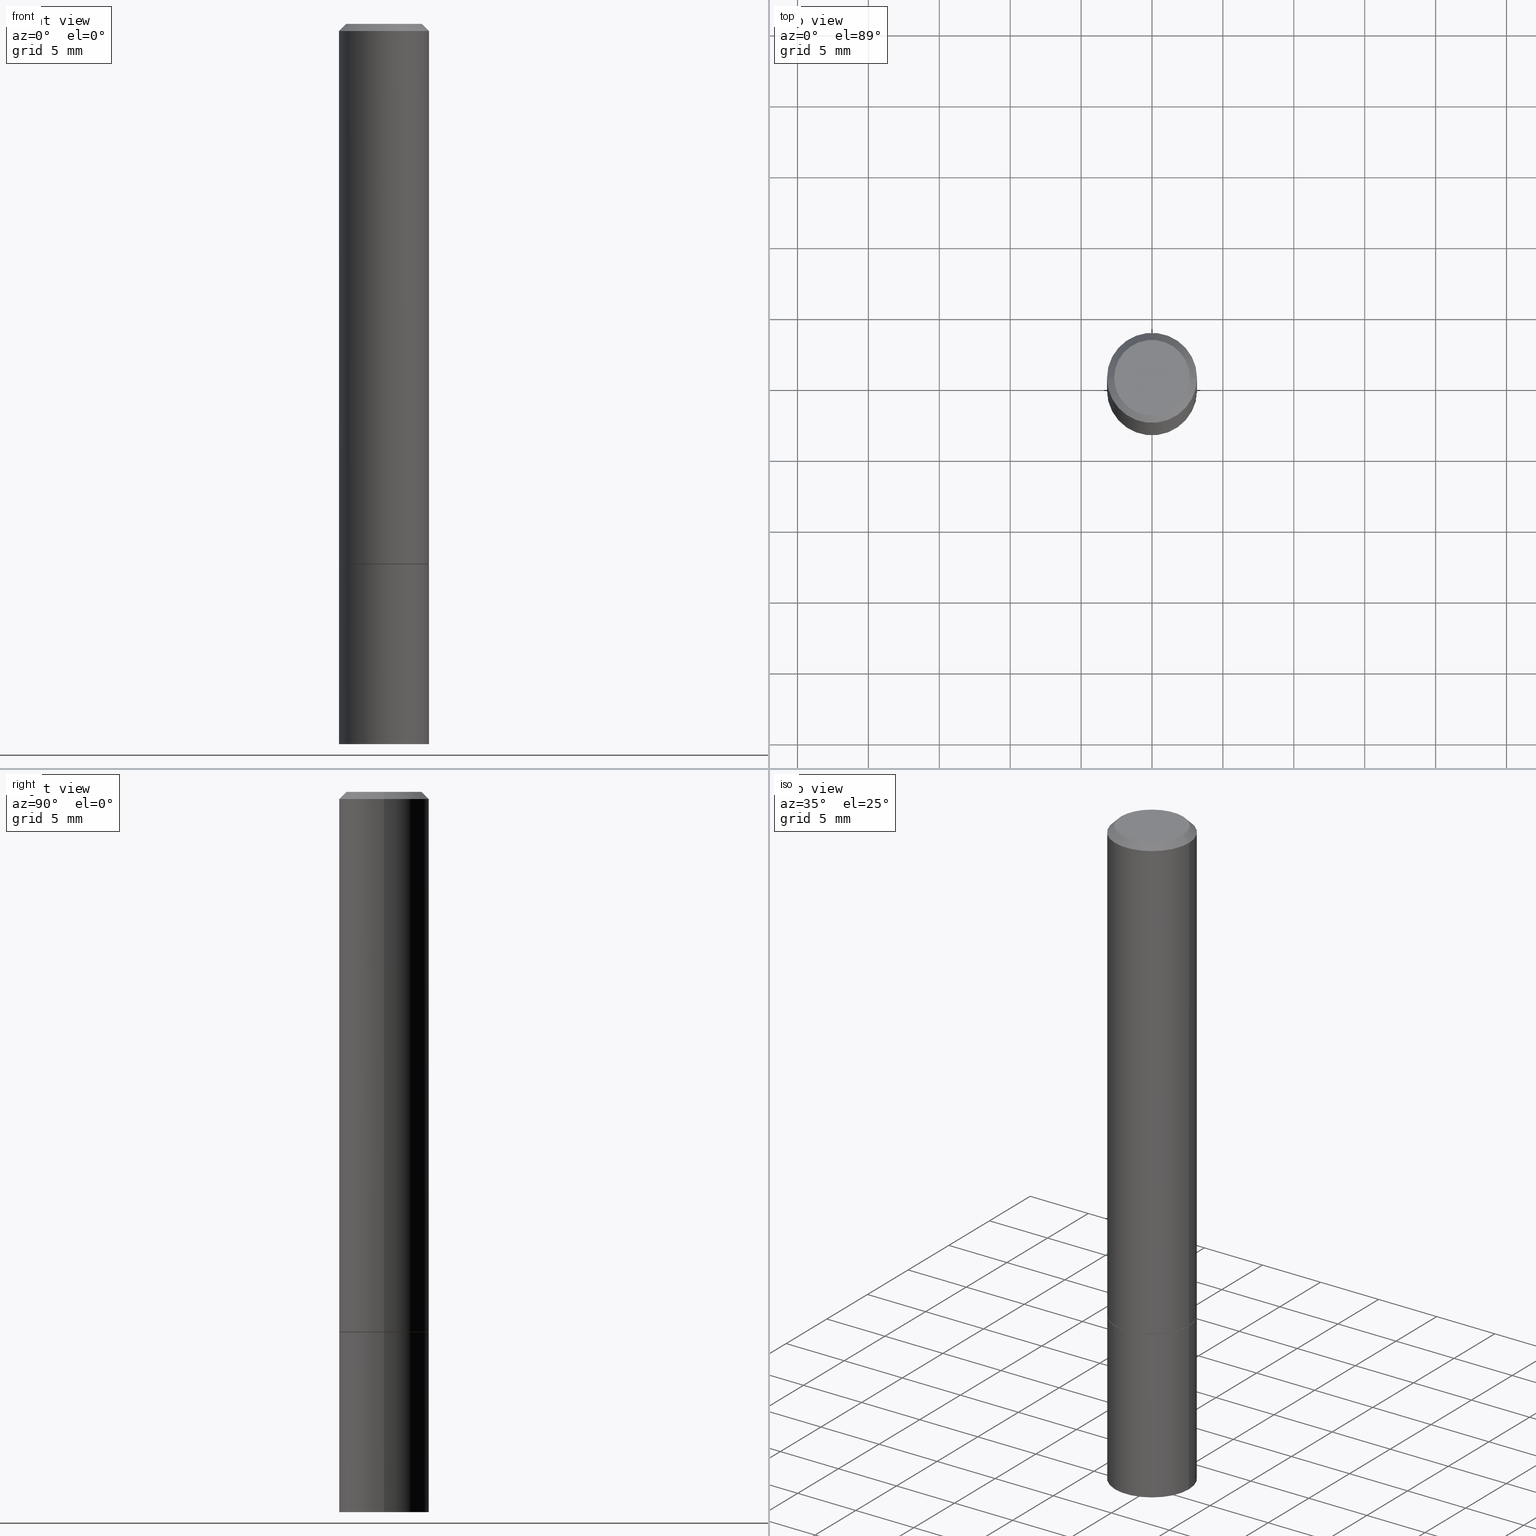
[diagram: canonical four-view strip — front | top / right | iso, engineering-drawing reading convention]
A machine part, canonical four-view strip (front | top / right | iso — engineering-drawing reading convention). The complete STEP part file that produces these views, byte-faithful:
ISO-10303-21;
HEADER;
FILE_DESCRIPTION (( 'STEP AP203' ),
    '1' );
FILE_NAME ('31244.STEP',
    '2024-02-27T12:55:07',
    ( '' ),
    ( '' ),
    'SwSTEP 2.0',
    'SolidWorks 2023',
    '' );
FILE_SCHEMA (( 'CONFIG_CONTROL_DESIGN' ));
ENDSEC;

DATA;
#1 = CC_DESIGN_PERSON_AND_ORGANIZATION_ASSIGNMENT ( #15, #91, ( #249 ) ) ;
#2 = PERSON_AND_ORGANIZATION ( #267, #307 ) ;
#3 = AXIS2_PLACEMENT_3D ( 'NONE', #309, #56, #314 ) ;
#4 = CARTESIAN_POINT ( 'NONE',  ( 4.890937612370279289E-31, -6.982962677686299005E-17, -0.02000000000000002470 ) ) ;
#5 = ADVANCED_FACE ( 'NONE', ( #159 ), #323, .T. ) ;
#6 = DIRECTION ( 'NONE',  ( 1.000000000000000000, -6.982962677686265922E-15, 4.876176775795935793E-29 ) ) ;
#7 = DATE_TIME_ROLE ( 'classification_date' ) ;
#8 = EDGE_LOOP ( 'NONE', ( #315, #99 ) ) ;
#9 = EDGE_CURVE ( 'NONE', #101, #330, #242, .T. ) ;
#10 = MANIFOLD_SOLID_BREP ( 'Body-Move/Copy2[1]', #164 ) ;
#11 = PERSON_AND_ORGANIZATION_ROLE ( 'creator' ) ;
#12 = ORIENTED_EDGE ( 'NONE', *, *, #310, .T. ) ;
#13 = VECTOR ( 'NONE', #194, 39.37007874015748143 ) ;
#14 = CIRCLE ( 'NONE', #312, 0.1249999999999998057 ) ;
#15 = PERSON_AND_ORGANIZATION ( #267, #307 ) ;
#16 = EDGE_LOOP ( 'NONE', ( #19, #276, #206, #185 ) ) ;
#17 = MANIFOLD_SOLID_BREP ( 'Body-Move/Copy2[2]', #181 ) ;
#18 = DIRECTION ( 'NONE',  ( -1.000000000000000000, 6.982962677686267499E-15, 0.000000000000000000 ) ) ;
#19 = ORIENTED_EDGE ( 'NONE', *, *, #293, .T. ) ;
#20 = DIRECTION ( 'NONE',  ( -2.445468806185136877E-29, 3.491481338843145188E-15, 1.000000000000000000 ) ) ;
#21 = VERTEX_POINT ( 'NONE', #292 ) ;
#22 = EDGE_CURVE ( 'NONE', #335, #222, #183, .T. ) ;
#23 = FACE_OUTER_BOUND ( 'NONE', #125, .T. ) ;
#24 = EDGE_CURVE ( 'NONE', #330, #115, #41, .T. ) ;
#25 = DIRECTION ( 'NONE',  ( -2.445468806185136597E-29, 3.491481338843145583E-15, 1.000000000000000000 ) ) ;
#26 = LINE ( 'NONE', #191, #13 ) ;
#27 = AXIS2_PLACEMENT_3D ( 'NONE', #260, #279, #275 ) ;
#28 = FACE_OUTER_BOUND ( 'NONE', #30, .T. ) ;
#29 = EDGE_CURVE ( 'NONE', #115, #327, #251, .T. ) ;
#30 = EDGE_LOOP ( 'NONE', ( #346, #93, #38, #352 ) ) ;
#31 = LOCAL_TIME ( 7, 55, 7.000000000000000000, #288 ) ;
#32 = EDGE_CURVE ( 'NONE', #248, #21, #263, .T. ) ;
#33 = PERSON_AND_ORGANIZATION ( #267, #307 ) ;
#34 = PERSON_AND_ORGANIZATION ( #267, #307 ) ;
#35 = VERTEX_POINT ( 'NONE', #201 ) ;
#36 = CC_DESIGN_APPROVAL ( #163, ( #86 ) ) ;
#37 = PERSON_AND_ORGANIZATION ( #267, #307 ) ;
#38 = ORIENTED_EDGE ( 'NONE', *, *, #361, .T. ) ;
#39 = EDGE_CURVE ( 'NONE', #248, #327, #172, .T. ) ;
#40 = APPROVAL_DATE_TIME ( #66, #163 ) ;
#41 = LINE ( 'NONE', #157, #55 ) ;
#42 = DATE_TIME_ROLE ( 'creation_date' ) ;
#43 = DIRECTION ( 'NONE',  ( -2.445468806185136597E-29, 3.491481338843145583E-15, 1.000000000000000000 ) ) ;
#44 = CIRCLE ( 'NONE', #298, 0.1250000000000000000 ) ;
#45 = VECTOR ( 'NONE', #287, 39.37007874015748143 ) ;
#46 = EDGE_LOOP ( 'NONE', ( #296, #179, #246, #343 ) ) ;
#47 = CARTESIAN_POINT ( 'NONE',  ( 7.332110811570568410E-16, 0.1049999999999998296, -3.666055405785297517E-16 ) ) ;
#48 = VERTEX_POINT ( 'NONE', #326 ) ;
#49 = AXIS2_PLACEMENT_3D ( 'NONE', #187, #274, #132 ) ;
#50 = CARTESIAN_POINT ( 'NONE',  ( 0.000000000000000000, 0.000000000000000000, 0.000000000000000000 ) ) ;
#51 = ADVANCED_FACE ( 'NONE', ( #156 ), #122, .T. ) ;
#52 = DIRECTION ( 'NONE',  ( -1.000000000000000000, 6.982962677686265922E-15, -4.876176775795935793E-29 ) ) ;
#53 = DIRECTION ( 'NONE',  ( 1.000000000000000000, -6.982962677686266711E-15, 4.876176775795935793E-29 ) ) ;
#54 = DIRECTION ( 'NONE',  ( 0.000000000000000000, 0.000000000000000000, 1.000000000000000000 ) ) ;
#55 = VECTOR ( 'NONE', #154, 39.37007874015748143 ) ;
#56 = DIRECTION ( 'NONE',  ( -2.445468806185136597E-29, 3.491481338843145583E-15, 1.000000000000000000 ) ) ;
#57 = APPROVAL_STATUS ( 'not_yet_approved' ) ;
#58 =( NAMED_UNIT ( * ) PLANE_ANGLE_UNIT ( ) SI_UNIT ( $, .RADIAN. ) );
#59 = ORIENTED_EDGE ( 'NONE', *, *, #284, .T. ) ;
#60 = AXIS2_PLACEMENT_3D ( 'NONE', #47, #228, #52 ) ;
#61 = ADVANCED_FACE ( 'NONE', ( #78 ), #311, .T. ) ;
#62 = APPLICATION_PROTOCOL_DEFINITION ( 'international standard', 'config_control_design', 1994, #177 ) ;
#63 = CARTESIAN_POINT ( 'NONE',  ( 0.000000000000000000, 0.000000000000000000, 0.000000000000000000 ) ) ;
#64 = APPROVAL_STATUS ( 'not_yet_approved' ) ;
#65 = CARTESIAN_POINT ( 'NONE',  ( -0.1249999999999998057, 8.030407079339190545E-16, -0.02000000000000002470 ) ) ;
#66 = DATE_AND_TIME ( #220, #127 ) ;
#67 = ORIENTED_EDGE ( 'NONE', *, *, #347, .F. ) ;
#68 = DATE_AND_TIME ( #245, #205 ) ;
#69 = ORIENTED_EDGE ( 'NONE', *, *, #39, .T. ) ;
#70 = CIRCLE ( 'NONE', #97, 0.1049999999999998296 ) ;
#71 = PERSON_AND_ORGANIZATION_ROLE ( 'creator' ) ;
#72 = ORIENTED_EDGE ( 'NONE', *, *, #39, .F. ) ;
#73 = COORDINATED_UNIVERSAL_TIME_OFFSET ( 5, 0, .BEHIND. ) ;
#74 = ORIENTED_EDGE ( 'NONE', *, *, #140, .F. ) ;
#75 = CARTESIAN_POINT ( 'NONE',  ( 8.728703347108198236E-16, 0.1249999999999947542, -1.500000000000000444 ) ) ;
#76 = CARTESIAN_POINT ( 'NONE',  ( -0.1249999999999999029, 8.881784197001245421E-16, -6.148668862818627323E-30 ) ) ;
#77 = CC_DESIGN_DATE_AND_TIME_ASSIGNMENT ( #321, #42, ( #173 ) ) ;
#78 = FACE_OUTER_BOUND ( 'NONE', #176, .T. ) ;
#79 = ORIENTED_EDGE ( 'NONE', *, *, #29, .T. ) ;
#80 = FACE_OUTER_BOUND ( 'NONE', #16, .T. ) ;
#81 = AXIS2_PLACEMENT_3D ( 'NONE', #153, #247, #299 ) ;
#82 = LOCAL_TIME ( 7, 55, 7.000000000000000000, #150 ) ;
#83 = DIRECTION ( 'NONE',  ( -2.445468806185136597E-29, 3.491481338843145583E-15, 1.000000000000000000 ) ) ;
#84 = FACE_OUTER_BOUND ( 'NONE', #130, .T. ) ;
#85 = AXIS2_PLACEMENT_3D ( 'NONE', #221, #349, #226 ) ;
#86 = SECURITY_CLASSIFICATION ( '', '', #319 ) ;
#87 = EDGE_LOOP ( 'NONE', ( #238, #270 ) ) ;
#88 = CARTESIAN_POINT ( 'NONE',  ( 0.1250000000000000000, -8.728703347107833388E-16, 6.095220969744919741E-30 ) ) ;
#89 = ORIENTED_EDGE ( 'NONE', *, *, #265, .T. ) ;
#90 = APPROVAL_PERSON_ORGANIZATION ( #2, #217, #119 ) ;
#91 = PERSON_AND_ORGANIZATION_ROLE ( 'design_supplier' ) ;
#92 = DATE_AND_TIME ( #94, #31 ) ;
#93 = ORIENTED_EDGE ( 'NONE', *, *, #22, .T. ) ;
#94 = CALENDAR_DATE ( 2024, 27, 2 ) ;
#95 = DIRECTION ( 'NONE',  ( -2.438088387897960049E-29, 3.491481338843145188E-15, 1.000000000000000000 ) ) ;
#96 = EDGE_LOOP ( 'NONE', ( #316, #123 ) ) ;
#97 = AXIS2_PLACEMENT_3D ( 'NONE', #282, #137, #258 ) ;
#98 = CALENDAR_DATE ( 2024, 27, 2 ) ;
#99 = ORIENTED_EDGE ( 'NONE', *, *, #331, .T. ) ;
#100 = APPROVAL_ROLE ( '' ) ;
#101 = VERTEX_POINT ( 'NONE', #329 ) ;
#102 = APPROVAL ( #64, 'UNSPECIFIED' ) ;
#103 = PLANE ( 'NONE',  #231 ) ;
#104 = VERTEX_POINT ( 'NONE', #250 ) ;
#105 = VECTOR ( 'NONE', #195, 39.37007874015748143 ) ;
#106 = CARTESIAN_POINT ( 'NONE',  ( 4.890937612370273194E-29, -6.982962677686291165E-15, -2.000000000000000000 ) ) ;
#107 = ADVANCED_FACE ( 'NONE', ( #332 ), #103, .F. ) ;
#108 = DIRECTION ( 'NONE',  ( -2.445468806185136877E-29, 3.491481338843145188E-15, 1.000000000000000000 ) ) ;
#109 = LINE ( 'NONE', #356, #318 ) ;
#110 = DIRECTION ( 'NONE',  ( -2.445468806185136597E-29, 3.491481338843145583E-15, 1.000000000000000000 ) ) ;
#111 = DIRECTION ( 'NONE',  ( -2.445468806185136597E-29, 3.491481338843145583E-15, 1.000000000000000000 ) ) ;
#112 = CC_DESIGN_PERSON_AND_ORGANIZATION_ASSIGNMENT ( #124, #180, ( #86 ) ) ;
#113 = MECHANICAL_CONTEXT ( 'NONE', #177, 'mechanical' ) ;
#114 = CIRCLE ( 'NONE', #325, 0.1249999999999998057 ) ;
#115 = VERTEX_POINT ( 'NONE', #131 ) ;
#116 = ADVANCED_FACE ( 'NONE', ( #354 ), #334, .F. ) ;
#117 = DIRECTION ( 'NONE',  ( -2.445468806185136597E-29, 3.491481338843145583E-15, 1.000000000000000000 ) ) ;
#118 = CC_DESIGN_APPROVAL ( #102, ( #249 ) ) ;
#119 = APPROVAL_ROLE ( '' ) ;
#120 = LINE ( 'NONE', #348, #126 ) ;
#121 = CC_DESIGN_DATE_AND_TIME_ASSIGNMENT ( #147, #7, ( #86 ) ) ;
#122 = CYLINDRICAL_SURFACE ( 'NONE', #81, 0.1249999999999999029 ) ;
#123 = ORIENTED_EDGE ( 'NONE', *, *, #227, .F. ) ;
#124 = PERSON_AND_ORGANIZATION ( #267, #307 ) ;
#125 = EDGE_LOOP ( 'NONE', ( #272, #79, #67, #271 ) ) ;
#126 = VECTOR ( 'NONE', #108, 39.37007874015748143 ) ;
#127 = LOCAL_TIME ( 7, 55, 7.000000000000000000, #73 ) ;
#128 = DIRECTION ( 'NONE',  ( 1.000000000000000000, -6.982962677686270655E-15, 0.000000000000000000 ) ) ;
#129 = EDGE_CURVE ( 'NONE', #335, #35, #120, .T. ) ;
#130 = EDGE_LOOP ( 'NONE', ( #355, #182 ) ) ;
#131 = CARTESIAN_POINT ( 'NONE',  ( -0.1250000000000000278, -1.763601657151241241E-15, -1.498999999999999666 ) ) ;
#132 = DIRECTION ( 'NONE',  ( 1.000000000000000000, -6.982962677686270655E-15, 0.000000000000000000 ) ) ;
#133 = APPLICATION_CONTEXT ( 'configuration controlled 3d designs of mechanical parts and assemblies' ) ;
#134 = DIRECTION ( 'NONE',  ( -1.000000000000000000, 6.982962677686265922E-15, -4.876176775795935793E-29 ) ) ;
#135 = ORIENTED_EDGE ( 'NONE', *, *, #253, .F. ) ;
#136 = CARTESIAN_POINT ( 'NONE',  ( 3.668203209277704335E-29, -5.237222008264717388E-15, -1.499999999999999778 ) ) ;
#137 = DIRECTION ( 'NONE',  ( -2.445468806185136597E-29, 3.491481338843145583E-15, 1.000000000000000000 ) ) ;
#138 =( GEOMETRIC_REPRESENTATION_CONTEXT ( 3 ) GLOBAL_UNCERTAINTY_ASSIGNED_CONTEXT ( ( #165 ) ) GLOBAL_UNIT_ASSIGNED_CONTEXT ( ( #208, #58, #365 ) ) REPRESENTATION_CONTEXT ( 'NONE', 'WORKASPACE' ) );
#139 = DIRECTION ( 'NONE',  ( 1.000000000000000000, -6.982962677686267499E-15, 0.000000000000000000 ) ) ;
#140 = EDGE_CURVE ( 'NONE', #21, #218, #26, .T. ) ;
#141 = PERSON_AND_ORGANIZATION_ROLE ( 'design_owner' ) ;
#142 = DIRECTION ( 'NONE',  ( 1.000000000000000000, -6.982962677686266711E-15, 4.876176775795935793E-29 ) ) ;
#143 = CC_DESIGN_PERSON_AND_ORGANIZATION_ASSIGNMENT ( #33, #71, ( #173 ) ) ;
#144 = LENGTH_MEASURE_WITH_UNIT ( LENGTH_MEASURE( 0.02539999999999999897 ), #207 );
#145 = CIRCLE ( 'NONE', #351, 0.1250000000000000000 ) ;
#146 = CARTESIAN_POINT ( 'NONE',  ( -0.1249999999999998057, 8.030407079339190545E-16, -0.02000000000000002470 ) ) ;
#147 = DATE_AND_TIME ( #98, #82 ) ;
#148 = AXIS2_PLACEMENT_3D ( 'NONE', #289, #95, #6 ) ;
#149 = AXIS2_PLACEMENT_3D ( 'NONE', #136, #305, #168 ) ;
#150 = COORDINATED_UNIVERSAL_TIME_OFFSET ( 5, 0, .BEHIND. ) ;
#151 = CARTESIAN_POINT ( 'NONE',  ( 4.890937612370273194E-29, -6.982962677686291165E-15, -2.000000000000000000 ) ) ;
#152 = PERSON_AND_ORGANIZATION ( #267, #307 ) ;
#153 = CARTESIAN_POINT ( 'NONE',  ( 0.000000000000000000, 0.000000000000000000, 0.000000000000000000 ) ) ;
#154 = DIRECTION ( 'NONE',  ( -0.7071067811866199593, 7.493145998870616062E-15, 0.7071067811864750752 ) ) ;
#155 = APPROVAL_ROLE ( '' ) ;
#156 = FACE_OUTER_BOUND ( 'NONE', #285, .T. ) ;
#157 = CARTESIAN_POINT ( 'NONE',  ( -0.1239999999999999991, -4.356149015922192375E-15, -1.499999999999999556 ) ) ;
#158 = CIRCLE ( 'NONE', #149, 0.1250000000000000000 ) ;
#159 = FACE_OUTER_BOUND ( 'NONE', #46, .T. ) ;
#160 = PLANE ( 'NONE',  #210 ) ;
#161 = ORIENTED_EDGE ( 'NONE', *, *, #32, .F. ) ;
#162 = DIRECTION ( 'NONE',  ( 1.000000000000000000, -6.982962677686270655E-15, 0.000000000000000000 ) ) ;
#163 = APPROVAL ( #244, 'UNSPECIFIED' ) ;
#164 = CLOSED_SHELL ( 'NONE', ( #199, #186, #107, #297 ) ) ;
#165 = UNCERTAINTY_MEASURE_WITH_UNIT (LENGTH_MEASURE( 1.000000000000000082E-05 ), #208, 'distance_accuracy_value', 'NONE');
#166 = CARTESIAN_POINT ( 'NONE',  ( 0.1239999999999999991, -6.103109380297813924E-15, -1.499999999999999556 ) ) ;
#167 = ADVANCED_FACE ( 'NONE', ( #84 ), #233, .F. ) ;
#168 = DIRECTION ( 'NONE',  ( 1.000000000000000000, -6.982962677686270655E-15, 0.000000000000000000 ) ) ;
#169 = DIRECTION ( 'NONE',  ( 1.000000000000000000, 0.000000000000000000, 0.000000000000000000 ) ) ;
#170 = APPROVAL_PERSON_ORGANIZATION ( #152, #163, #100 ) ;
#171 = LINE ( 'NONE', #88, #45 ) ;
#172 = LINE ( 'NONE', #146, #306 ) ;
#173 = PRODUCT_DEFINITION ( 'UNKNOWN', '', #249, #202 ) ;
#174 = CARTESIAN_POINT ( 'NONE',  ( 3.668203209277704335E-29, -5.237222008264717388E-15, -1.499999999999999778 ) ) ;
#175 = AXIS2_PLACEMENT_3D ( 'NONE', #151, #43, #295 ) ;
#176 = EDGE_LOOP ( 'NONE', ( #135, #255, #192, #72 ) ) ;
#177 = APPLICATION_CONTEXT ( 'configuration controlled 3d designs of mechanical parts and assemblies' ) ;
#178 = CC_DESIGN_PERSON_AND_ORGANIZATION_ASSIGNMENT ( #37, #11, ( #249 ) ) ;
#179 = ORIENTED_EDGE ( 'NONE', *, *, #24, .T. ) ;
#180 = PERSON_AND_ORGANIZATION_ROLE ( 'classification_officer' ) ;
#181 = CLOSED_SHELL ( 'NONE', ( #5, #212, #61, #320, #51, #357, #116, #167 ) ) ;
#182 = ORIENTED_EDGE ( 'NONE', *, *, #253, .T. ) ;
#183 = CIRCLE ( 'NONE', #175, 0.1250000000000000000 ) ;
#184 = APPROVAL_PERSON_ORGANIZATION ( #34, #102, #155 ) ;
#185 = ORIENTED_EDGE ( 'NONE', *, *, #361, .F. ) ;
#186 = ADVANCED_FACE ( 'NONE', ( #358 ), #160, .T. ) ;
#187 = CARTESIAN_POINT ( 'NONE',  ( 3.668203209277703774E-29, -5.237222008264716599E-15, -1.499999999999999556 ) ) ;
#188 = DIRECTION ( 'NONE',  ( 2.445468806185136597E-29, -3.491481338843145583E-15, -1.000000000000000000 ) ) ;
#189 = DIRECTION ( 'NONE',  ( 2.438088387897960049E-29, -3.491481338843145188E-15, -1.000000000000000000 ) ) ;
#190 = AXIS2_PLACEMENT_3D ( 'NONE', #203, #54, #169 ) ;
#191 = CARTESIAN_POINT ( 'NONE',  ( 0.1249999999999998057, -9.273918764983031658E-16, -0.02000000000000002470 ) ) ;
#192 = ORIENTED_EDGE ( 'NONE', *, *, #347, .T. ) ;
#193 = EDGE_CURVE ( 'NONE', #48, #115, #44, .T. ) ;
#194 = DIRECTION ( 'NONE',  ( 0.7071067811865466846, -7.319954787623252890E-15, -0.7071067811865483499 ) ) ;
#195 = DIRECTION ( 'NONE',  ( -2.445468806185136877E-29, 3.491481338843145188E-15, 1.000000000000000000 ) ) ;
#196 = AXIS2_PLACEMENT_3D ( 'NONE', #252, #224, #333 ) ;
#197 = AXIS2_PLACEMENT_3D ( 'NONE', #219, #188, #18 ) ;
#198 = CARTESIAN_POINT ( 'NONE',  ( 0.1249999999999998057, -9.273918764983031658E-16, -0.02000000000000002470 ) ) ;
#199 = ADVANCED_FACE ( 'NONE', ( #80 ), #277, .T. ) ;
#200 = CARTESIAN_POINT ( 'NONE',  ( 8.728703347108321496E-16, 0.1249999999999930195, -2.000000000000000444 ) ) ;
#201 = CARTESIAN_POINT ( 'NONE',  ( -0.1250000000000000000, -5.221913923275378650E-15, -1.499999999999999778 ) ) ;
#202 = DESIGN_CONTEXT ( 'detailed design', #133, 'design' ) ;
#203 = CARTESIAN_POINT ( 'NONE',  ( 0.000000000000000000, 0.000000000000000000, 0.000000000000000000 ) ) ;
#204 = ADVANCED_BREP_SHAPE_REPRESENTATION ( '31244', ( #10, #17, #190 ), #138 ) ;
#205 = LOCAL_TIME ( 7, 55, 7.000000000000000000, #291 ) ;
#206 = ORIENTED_EDGE ( 'NONE', *, *, #241, .F. ) ;
#207 =( LENGTH_UNIT ( ) NAMED_UNIT ( * ) SI_UNIT ( $, .METRE. ) );
#208 =( CONVERSION_BASED_UNIT ( 'INCH', #144 ) LENGTH_UNIT ( ) NAMED_UNIT ( #360 ) );
#209 = CYLINDRICAL_SURFACE ( 'NONE', #268, 0.1250000000000000000 ) ;
#210 = AXIS2_PLACEMENT_3D ( 'NONE', #200, #364, #134 ) ;
#211 = CIRCLE ( 'NONE', #27, 0.1239999999999999991 ) ;
#212 = ADVANCED_FACE ( 'NONE', ( #23 ), #302, .T. ) ;
#213 = COORDINATED_UNIVERSAL_TIME_OFFSET ( 5, 0, .BEHIND. ) ;
#214 = CALENDAR_DATE ( 2024, 27, 2 ) ;
#215 = ORIENTED_EDGE ( 'NONE', *, *, #310, .F. ) ;
#216 = CARTESIAN_POINT ( 'NONE',  ( 3.665757740471518732E-29, -5.233730526925875170E-15, -1.498999999999999666 ) ) ;
#217 = APPROVAL ( #57, 'UNSPECIFIED' ) ;
#218 = VERTEX_POINT ( 'NONE', #198 ) ;
#219 = CARTESIAN_POINT ( 'NONE',  ( 4.890937612370279289E-31, -6.982962677686299005E-17, -0.02000000000000002470 ) ) ;
#220 = CALENDAR_DATE ( 2024, 27, 2 ) ;
#221 = CARTESIAN_POINT ( 'NONE',  ( 4.890937612370279289E-31, -6.982962677686299005E-17, -0.02000000000000002470 ) ) ;
#222 = VERTEX_POINT ( 'NONE', #229 ) ;
#223 = DIRECTION ( 'NONE',  ( -0.7071067811865466846, 2.468850131082247989E-15, -0.7071067811865483499 ) ) ;
#224 = DIRECTION ( 'NONE',  ( -2.445468806185136597E-29, 3.491481338843145583E-15, 1.000000000000000000 ) ) ;
#225 = PRODUCT_DEFINITION_SHAPE ( 'NONE', 'NONE',  #173 ) ;
#226 = DIRECTION ( 'NONE',  ( -1.000000000000000000, 6.982962677686267499E-15, 0.000000000000000000 ) ) ;
#227 = EDGE_CURVE ( 'NONE', #330, #101, #211, .T. ) ;
#228 = DIRECTION ( 'NONE',  ( 2.438088387897960049E-29, -3.491481338843145188E-15, -1.000000000000000000 ) ) ;
#229 = CARTESIAN_POINT ( 'NONE',  ( 0.1250000000000000000, -7.855833012397075293E-15, -2.000000000000000000 ) ) ;
#230 = DIRECTION ( 'NONE',  ( -2.445468806185136597E-29, 3.491481338843145583E-15, 1.000000000000000000 ) ) ;
#231 = AXIS2_PLACEMENT_3D ( 'NONE', #75, #189, #273 ) ;
#232 = CARTESIAN_POINT ( 'NONE',  ( 4.890937612370279289E-31, -6.982962677686299005E-17, -0.02000000000000002470 ) ) ;
#233 = PLANE ( 'NONE',  #60 ) ;
#234 = AXIS2_PLACEMENT_3D ( 'NONE', #359, #230, #259 ) ;
#235 = DIRECTION ( 'NONE',  ( -2.445468806185136597E-29, 3.491481338843145583E-15, 1.000000000000000000 ) ) ;
#236 = AXIS2_PLACEMENT_3D ( 'NONE', #50, #111, #53 ) ;
#237 = ORIENTED_EDGE ( 'NONE', *, *, #257, .T. ) ;
#238 = ORIENTED_EDGE ( 'NONE', *, *, #293, .F. ) ;
#239 = DIRECTION ( 'NONE',  ( 1.000000000000000000, -6.982962677686267499E-15, 0.000000000000000000 ) ) ;
#240 = DIRECTION ( 'NONE',  ( 1.000000000000000000, -6.982962677686270655E-15, 0.000000000000000000 ) ) ;
#241 = EDGE_CURVE ( 'NONE', #104, #35, #158, .T. ) ;
#242 = CIRCLE ( 'NONE', #196, 0.1239999999999999991 ) ;
#243 = AXIS2_PLACEMENT_3D ( 'NONE', #106, #117, #240 ) ;
#244 = APPROVAL_STATUS ( 'not_yet_approved' ) ;
#245 = CALENDAR_DATE ( 2024, 27, 2 ) ;
#246 = ORIENTED_EDGE ( 'NONE', *, *, #193, .F. ) ;
#247 = DIRECTION ( 'NONE',  ( -2.445468806185136597E-29, 3.491481338843145583E-15, 1.000000000000000000 ) ) ;
#248 = VERTEX_POINT ( 'NONE', #338 ) ;
#249 = PRODUCT_DEFINITION_FORMATION_WITH_SPECIFIED_SOURCE ( 'ANY', '', #280, .NOT_KNOWN. ) ;
#250 = CARTESIAN_POINT ( 'NONE',  ( 0.1250000000000000000, -6.110092342975501516E-15, -1.499999999999999778 ) ) ;
#251 = LINE ( 'NONE', #76, #105 ) ;
#252 = CARTESIAN_POINT ( 'NONE',  ( 3.668203209277703774E-29, -5.237222008264716599E-15, -1.499999999999999556 ) ) ;
#253 = EDGE_CURVE ( 'NONE', #21, #248, #70, .T. ) ;
#254 = DIRECTION ( 'NONE',  ( -2.445468806185136597E-29, 3.491481338843145583E-15, 1.000000000000000000 ) ) ;
#255 = ORIENTED_EDGE ( 'NONE', *, *, #140, .T. ) ;
#256 = CIRCLE ( 'NONE', #278, 0.1250000000000000000 ) ;
#257 = EDGE_CURVE ( 'NONE', #101, #48, #341, .T. ) ;
#258 = DIRECTION ( 'NONE',  ( 1.000000000000000000, -6.982962677686266711E-15, 4.876176775795935793E-29 ) ) ;
#259 = DIRECTION ( 'NONE',  ( 1.000000000000000000, -6.982962677686266711E-15, 4.876176775795935793E-29 ) ) ;
#260 = CARTESIAN_POINT ( 'NONE',  ( 3.668203209277703774E-29, -5.237222008264716599E-15, -1.499999999999999556 ) ) ;
#261 = CC_DESIGN_PERSON_AND_ORGANIZATION_ASSIGNMENT ( #342, #141, ( #280 ) ) ;
#262 = APPLICATION_PROTOCOL_DEFINITION ( 'international standard', 'config_control_design', 1994, #133 ) ;
#263 = CIRCLE ( 'NONE', #234, 0.1049999999999998296 ) ;
#264 = CARTESIAN_POINT ( 'NONE',  ( -0.1250000000000000000, -5.221913923275378650E-15, -2.000000000000000000 ) ) ;
#265 = EDGE_CURVE ( 'NONE', #48, #218, #109, .T. ) ;
#266 = SHAPE_DEFINITION_REPRESENTATION ( #225, #204 ) ;
#267 = PERSON ( 'UNSPECIFIED', 'UNSPECIFIED', 'UNSPECIFIED', ('UNSPECIFIED'), ('UNSPECIFIED'), ('UNSPECIFIED') ) ;
#268 = AXIS2_PLACEMENT_3D ( 'NONE', #63, #366, #142 ) ;
#269 = APPROVAL_DATE_TIME ( #92, #217 ) ;
#270 = ORIENTED_EDGE ( 'NONE', *, *, #22, .F. ) ;
#271 = ORIENTED_EDGE ( 'NONE', *, *, #265, .F. ) ;
#272 = ORIENTED_EDGE ( 'NONE', *, *, #193, .T. ) ;
#273 = DIRECTION ( 'NONE',  ( -1.000000000000000000, 6.982962677686265922E-15, -4.876176775795935793E-29 ) ) ;
#274 = DIRECTION ( 'NONE',  ( -2.445468806185136597E-29, 3.491481338843145583E-15, 1.000000000000000000 ) ) ;
#275 = DIRECTION ( 'NONE',  ( 1.000000000000000000, -6.982962677686270655E-15, 0.000000000000000000 ) ) ;
#276 = ORIENTED_EDGE ( 'NONE', *, *, #129, .T. ) ;
#277 = CYLINDRICAL_SURFACE ( 'NONE', #236, 0.1250000000000000000 ) ;
#278 = AXIS2_PLACEMENT_3D ( 'NONE', #216, #324, #128 ) ;
#279 = DIRECTION ( 'NONE',  ( -2.445468806185136597E-29, 3.491481338843145583E-15, 1.000000000000000000 ) ) ;
#280 = PRODUCT ( '31244', '31244', '', ( #113 ) ) ;
#281 = DIRECTION ( 'NONE',  ( 0.7071067811866199593, -2.468850131083015945E-15, 0.7071067811864750752 ) ) ;
#282 = CARTESIAN_POINT ( 'NONE',  ( 0.000000000000000000, 0.000000000000000000, 0.000000000000000000 ) ) ;
#283 = CC_DESIGN_APPROVAL ( #217, ( #173 ) ) ;
#284 = EDGE_CURVE ( 'NONE', #327, #218, #14, .T. ) ;
#285 = EDGE_LOOP ( 'NONE', ( #322, #12, #89, #350 ) ) ;
#286 = AXIS2_PLACEMENT_3D ( 'NONE', #308, #83, #337 ) ;
#287 = DIRECTION ( 'NONE',  ( -2.445468806185136877E-29, 3.491481338843145188E-15, 1.000000000000000000 ) ) ;
#288 = COORDINATED_UNIVERSAL_TIME_OFFSET ( 5, 0, .BEHIND. ) ;
#289 = CARTESIAN_POINT ( 'NONE',  ( 3.668203209277704335E-29, -5.237222008264717388E-15, -1.499999999999999778 ) ) ;
#290 = CONICAL_SURFACE ( 'NONE', #3, 0.1239999999999999991, 0.7853981633975507526 ) ;
#291 = COORDINATED_UNIVERSAL_TIME_OFFSET ( 5, 0, .BEHIND. ) ;
#292 = CARTESIAN_POINT ( 'NONE',  ( 0.1049999999999998296, -8.238720831321564811E-16, 5.444276250344142358E-30 ) ) ;
#293 = EDGE_CURVE ( 'NONE', #222, #335, #336, .T. ) ;
#294 = FACE_OUTER_BOUND ( 'NONE', #300, .T. ) ;
#295 = DIRECTION ( 'NONE',  ( 1.000000000000000000, -6.982962677686270655E-15, 0.000000000000000000 ) ) ;
#296 = ORIENTED_EDGE ( 'NONE', *, *, #9, .T. ) ;
#297 = ADVANCED_FACE ( 'NONE', ( #28 ), #209, .T. ) ;
#298 = AXIS2_PLACEMENT_3D ( 'NONE', #304, #25, #162 ) ;
#299 = DIRECTION ( 'NONE',  ( 1.000000000000000000, -6.982962677686266711E-15, 4.876176775795935793E-29 ) ) ;
#300 = EDGE_LOOP ( 'NONE', ( #74, #161, #69, #59 ) ) ;
#301 = VECTOR ( 'NONE', #281, 39.37007874015748143 ) ;
#302 = CYLINDRICAL_SURFACE ( 'NONE', #286, 0.1249999999999999029 ) ;
#303 = EDGE_LOOP ( 'NONE', ( #344, #353, #237, #215 ) ) ;
#304 = CARTESIAN_POINT ( 'NONE',  ( 3.665757740471518732E-29, -5.233730526925875170E-15, -1.498999999999999666 ) ) ;
#305 = DIRECTION ( 'NONE',  ( -2.445468806185136597E-29, 3.491481338843145583E-15, 1.000000000000000000 ) ) ;
#306 = VECTOR ( 'NONE', #223, 39.37007874015748143 ) ;
#307 = ORGANIZATION ( 'UNSPECIFIED', 'UNSPECIFIED', '' ) ;
#308 = CARTESIAN_POINT ( 'NONE',  ( 0.000000000000000000, 0.000000000000000000, 0.000000000000000000 ) ) ;
#309 = CARTESIAN_POINT ( 'NONE',  ( 3.668203209277703774E-29, -5.237222008264716599E-15, -1.499999999999999556 ) ) ;
#310 = EDGE_CURVE ( 'NONE', #115, #48, #256, .T. ) ;
#311 = CONICAL_SURFACE ( 'NONE', #85, 0.1249999999999998057, 0.7853981633974471688 ) ;
#312 = AXIS2_PLACEMENT_3D ( 'NONE', #232, #254, #139 ) ;
#313 = DIRECTION ( 'NONE',  ( 1.000000000000000000, -6.982962677686270655E-15, 0.000000000000000000 ) ) ;
#314 = DIRECTION ( 'NONE',  ( 1.000000000000000000, -6.982962677686270655E-15, 0.000000000000000000 ) ) ;
#315 = ORIENTED_EDGE ( 'NONE', *, *, #241, .T. ) ;
#316 = ORIENTED_EDGE ( 'NONE', *, *, #9, .F. ) ;
#317 = FACE_OUTER_BOUND ( 'NONE', #303, .T. ) ;
#318 = VECTOR ( 'NONE', #20, 39.37007874015748143 ) ;
#319 = SECURITY_CLASSIFICATION_LEVEL ( 'unclassified' ) ;
#320 = ADVANCED_FACE ( 'NONE', ( #294 ), #362, .T. ) ;
#321 = DATE_AND_TIME ( #214, #345 ) ;
#322 = ORIENTED_EDGE ( 'NONE', *, *, #29, .F. ) ;
#323 = CONICAL_SURFACE ( 'NONE', #49, 0.1239999999999999991, 0.7853981633975507526 ) ;
#324 = DIRECTION ( 'NONE',  ( -2.445468806185136597E-29, 3.491481338843145583E-15, 1.000000000000000000 ) ) ;
#325 = AXIS2_PLACEMENT_3D ( 'NONE', #4, #110, #239 ) ;
#326 = CARTESIAN_POINT ( 'NONE',  ( 0.1250000000000000000, -6.106600861636658508E-15, -1.498999999999999666 ) ) ;
#327 = VERTEX_POINT ( 'NONE', #65 ) ;
#328 = APPROVAL_DATE_TIME ( #68, #102 ) ;
#329 = CARTESIAN_POINT ( 'NONE',  ( 0.1239999999999999991, -6.103109380297813924E-15, -1.499999999999999556 ) ) ;
#330 = VERTEX_POINT ( 'NONE', #363 ) ;
#331 = EDGE_CURVE ( 'NONE', #35, #104, #145, .T. ) ;
#332 = FACE_OUTER_BOUND ( 'NONE', #8, .T. ) ;
#333 = DIRECTION ( 'NONE',  ( 1.000000000000000000, -6.982962677686270655E-15, 0.000000000000000000 ) ) ;
#334 = PLANE ( 'NONE',  #148 ) ;
#335 = VERTEX_POINT ( 'NONE', #264 ) ;
#336 = CIRCLE ( 'NONE', #243, 0.1250000000000000000 ) ;
#337 = DIRECTION ( 'NONE',  ( 1.000000000000000000, -6.982962677686266711E-15, 4.876176775795935793E-29 ) ) ;
#338 = CARTESIAN_POINT ( 'NONE',  ( -0.1049999999999998296, 7.681258945454878985E-16, -5.249639473182158169E-30 ) ) ;
#339 = CC_DESIGN_SECURITY_CLASSIFICATION ( #86, ( #249 ) ) ;
#340 = PRODUCT_RELATED_PRODUCT_CATEGORY ( 'detail', '', ( #280 ) ) ;
#341 = LINE ( 'NONE', #166, #301 ) ;
#342 = PERSON_AND_ORGANIZATION ( #267, #307 ) ;
#343 = ORIENTED_EDGE ( 'NONE', *, *, #257, .F. ) ;
#344 = ORIENTED_EDGE ( 'NONE', *, *, #24, .F. ) ;
#345 = LOCAL_TIME ( 7, 55, 7.000000000000000000, #213 ) ;
#346 = ORIENTED_EDGE ( 'NONE', *, *, #129, .F. ) ;
#347 = EDGE_CURVE ( 'NONE', #218, #327, #114, .T. ) ;
#348 = CARTESIAN_POINT ( 'NONE',  ( -0.1250000000000000000, 8.881784197001252323E-16, -6.148668862818632227E-30 ) ) ;
#349 = DIRECTION ( 'NONE',  ( 2.445468806185136597E-29, -3.491481338843145583E-15, -1.000000000000000000 ) ) ;
#350 = ORIENTED_EDGE ( 'NONE', *, *, #284, .F. ) ;
#351 = AXIS2_PLACEMENT_3D ( 'NONE', #174, #235, #313 ) ;
#352 = ORIENTED_EDGE ( 'NONE', *, *, #331, .F. ) ;
#353 = ORIENTED_EDGE ( 'NONE', *, *, #227, .T. ) ;
#354 = FACE_OUTER_BOUND ( 'NONE', #96, .T. ) ;
#355 = ORIENTED_EDGE ( 'NONE', *, *, #32, .T. ) ;
#356 = CARTESIAN_POINT ( 'NONE',  ( 0.1249999999999999029, -8.728703347107826486E-16, 6.095220969744914837E-30 ) ) ;
#357 = ADVANCED_FACE ( 'NONE', ( #317 ), #290, .T. ) ;
#358 = FACE_OUTER_BOUND ( 'NONE', #87, .T. ) ;
#359 = CARTESIAN_POINT ( 'NONE',  ( 0.000000000000000000, 0.000000000000000000, 0.000000000000000000 ) ) ;
#360 = DIMENSIONAL_EXPONENTS ( 1.000000000000000000, 0.000000000000000000, 0.000000000000000000, 0.000000000000000000, 0.000000000000000000, 0.000000000000000000, 0.000000000000000000 ) ;
#361 = EDGE_CURVE ( 'NONE', #222, #104, #171, .T. ) ;
#362 = CONICAL_SURFACE ( 'NONE', #197, 0.1249999999999998057, 0.7853981633974471688 ) ;
#363 = CARTESIAN_POINT ( 'NONE',  ( -0.1239999999999999991, -4.350850561573970762E-15, -1.499999999999999556 ) ) ;
#364 = DIRECTION ( 'NONE',  ( 2.438088387897960049E-29, -3.491481338843145188E-15, -1.000000000000000000 ) ) ;
#365 =( NAMED_UNIT ( * ) SI_UNIT ( $, .STERADIAN. ) SOLID_ANGLE_UNIT ( ) );
#366 = DIRECTION ( 'NONE',  ( -2.445468806185136597E-29, 3.491481338843145583E-15, 1.000000000000000000 ) ) ;
ENDSEC;
END-ISO-10303-21;
